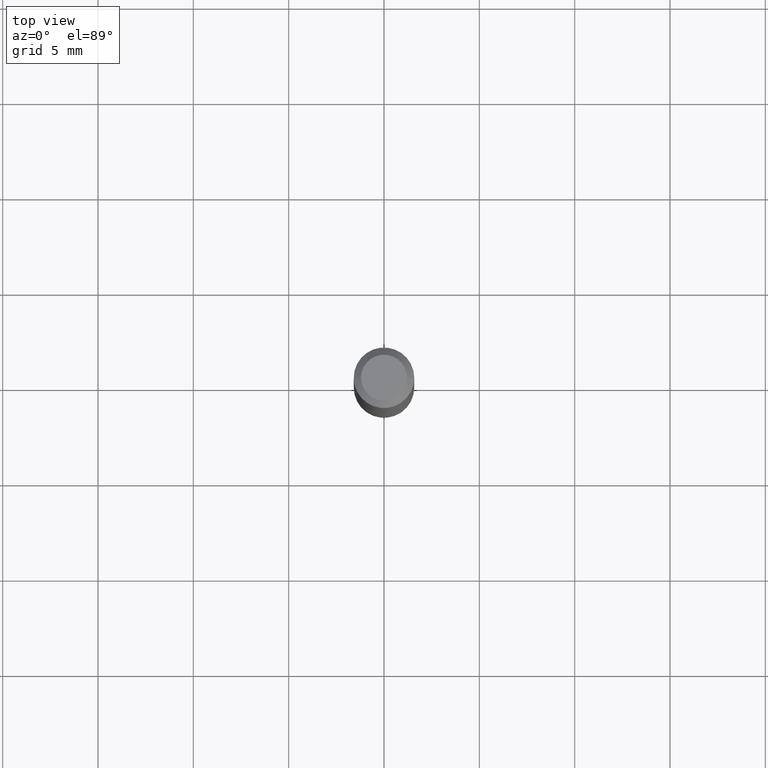
[diagram: clean part render]
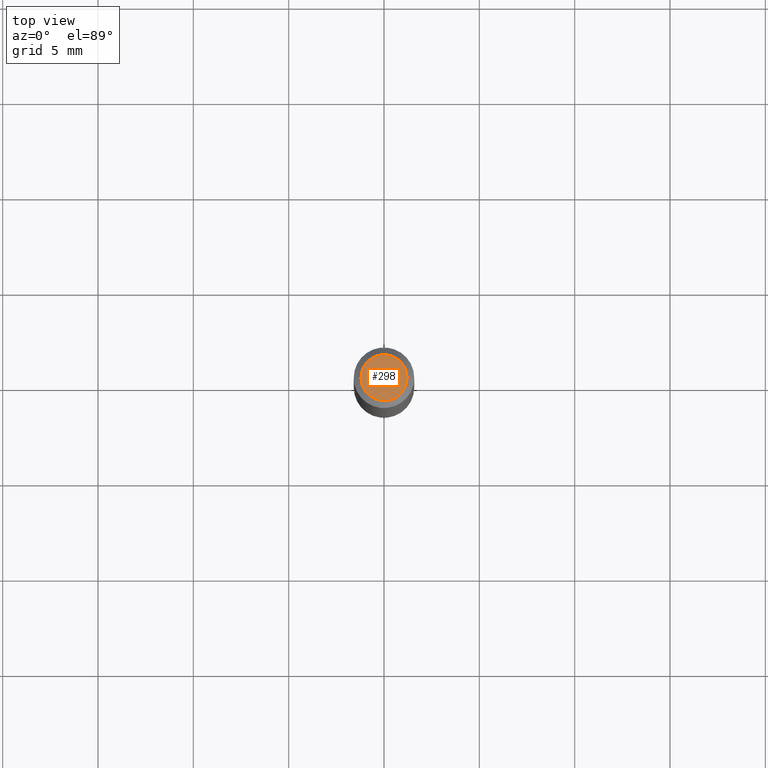
[diagram: same view with one face highlighted and labeled with its STEP entity id]
A machine part, top view. The second image highlights one B-rep face of the part: STEP entity #298.
In plain terms, the highlighted planar face has unit normal (0, -0, -1).
Its self-contained STEP definition (entity closure, byte-faithful):
#25 = DIRECTION ( 'NONE',  ( 2.438088387897960049E-29, -3.491481338843145188E-15, -1.000000000000000000 ) ) ;
#67 = VERTEX_POINT ( 'NONE', #107 ) ;
#83 = EDGE_LOOP ( 'NONE', ( #127, #376 ) ) ;
#102 = EDGE_CURVE ( 'NONE', #67, #225, #308, .T. ) ;
#103 = CARTESIAN_POINT ( 'NONE',  ( -2.427605901612193195E-45, 3.465977845273231710E-31, 9.926955091278351202E-17 ) ) ;
#107 = CARTESIAN_POINT ( 'NONE',  ( -0.04749999999999999362, 3.578768372314212971E-16, 9.926955091278110846E-17 ) ) ;
#119 = EDGE_CURVE ( 'NONE', #225, #67, #374, .T. ) ;
#125 = AXIS2_PLACEMENT_3D ( 'NONE', #458, #139, #269 ) ;
#127 = ORIENTED_EDGE ( 'NONE', *, *, #102, .T. ) ;
#134 = CARTESIAN_POINT ( 'NONE',  ( 0.04749999999999999362, -4.035134999187576651E-16, 9.926955091278610047E-17 ) ) ;
#139 = DIRECTION ( 'NONE',  ( -2.445468806185136597E-29, 3.491481338843145583E-15, 1.000000000000000000 ) ) ;
#190 = DIRECTION ( 'NONE',  ( 1.000000000000000000, -6.982962677686267499E-15, 4.884662768193073002E-29 ) ) ;
#225 = VERTEX_POINT ( 'NONE', #134 ) ;
#268 = DIRECTION ( 'NONE',  ( -1.000000000000000000, 6.982962677686265922E-15, -4.876176775795935793E-29 ) ) ;
#269 = DIRECTION ( 'NONE',  ( 1.000000000000000000, -6.982962677686267499E-15, 4.884662768193073002E-29 ) ) ;
#296 = FACE_OUTER_BOUND ( 'NONE', #83, .T. ) ;
#298 = ADVANCED_FACE ( 'NONE', ( #296 ), #343, .F. ) ;
#308 = CIRCLE ( 'NONE', #125, 0.04749999999999999362 ) ;
#343 = PLANE ( 'NONE',  #408 ) ;
#363 = DIRECTION ( 'NONE',  ( -2.445468806185136597E-29, 3.491481338843145583E-15, 1.000000000000000000 ) ) ;
#374 = CIRCLE ( 'NONE', #437, 0.04749999999999999362 ) ;
#376 = ORIENTED_EDGE ( 'NONE', *, *, #119, .T. ) ;
#408 = AXIS2_PLACEMENT_3D ( 'NONE', #410, #25, #268 ) ;
#410 = CARTESIAN_POINT ( 'NONE',  ( 3.316907271900976096E-16, 0.04749999999999999362, -1.162105881386576343E-16 ) ) ;
#437 = AXIS2_PLACEMENT_3D ( 'NONE', #103, #363, #190 ) ;
#458 = CARTESIAN_POINT ( 'NONE',  ( -2.427605901612193195E-45, 3.465977845273231710E-31, 9.926955091278351202E-17 ) ) ;